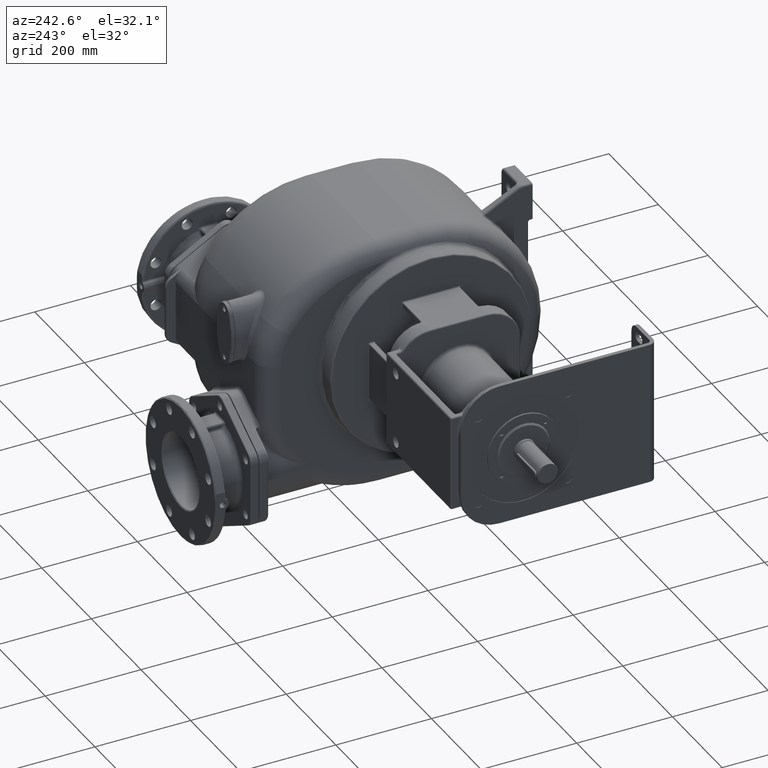
[diagram: clean part render]
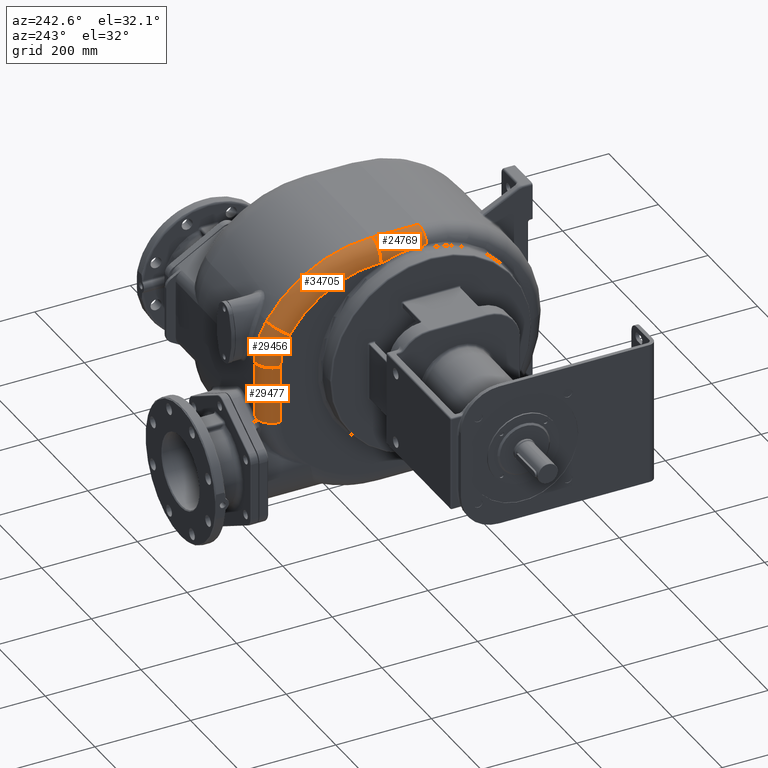
[diagram: same view with one multi-face feature highlighted, each face labeled with its STEP entity id]
A machine part, auxiliary view. The highlighted faces form ONE feature: a constant-radius fillet chain: 4 tangent blend faces with common blend radius 36 mm. The faces share edges in the B-rep.
Their STEP definitions:
[1] entity #29477 (Cylinder):
#4705=CARTESIAN_POINT('',(-1.075706895218E2,6.099080928169E2,
-8.122009189057E1));
#4706=CARTESIAN_POINT('',(-1.077603667420E2,6.098945152202E2,
-8.134785436569E1));
#4707=CARTESIAN_POINT('',(-1.081398862236E2,6.098643268937E2,
-8.160343563808E1));
#4708=CARTESIAN_POINT('',(-1.087074904091E2,6.098100874647E2,
-8.198578602877E1));
#4709=CARTESIAN_POINT('',(-1.090851972030E2,6.097679763710E2,
-8.224018206872E1));
#4710=CARTESIAN_POINT('',(-1.092738153531E2,6.097454256796E2,
-8.236722963494E1));
#4712=CARTESIAN_POINT('',(-1.049999999999E2,6.099999907785E2,
-7.948849427768E1));
#4713=CARTESIAN_POINT('',(-1.052860164744E2,6.099999883422E2,
-7.968114918334E1));
#4714=CARTESIAN_POINT('',(-1.058578897467E2,6.099931890198E2,
-8.006634656761E1));
#4715=CARTESIAN_POINT('',(-1.067151210626E2,6.099625297640E2,
-8.064374551038E1));
#4716=CARTESIAN_POINT('',(-1.072854916578E2,6.099285071755E2,
-8.102798783214E1));
#4717=CARTESIAN_POINT('',(-1.075706895218E2,6.099080928169E2,
-8.122009189057E1));
#4719=CARTESIAN_POINT('',(-1.05E2,5.74E2,3.462177826491E1));
#4720=DIRECTION('',(0.E0,0.E0,-1.E0));
#4721=DIRECTION('',(-1.E0,0.E0,0.E0));
#4722=AXIS2_PLACEMENT_3D('',#4719,#4720,#4721);
#4724=CARTESIAN_POINT('',(-1.092738153531E2,6.097454256796E2,
-8.236722963494E1));
#4725=CARTESIAN_POINT('',(-1.094393539522E2,6.097256333466E2,
-8.247873117782E1));
#4726=CARTESIAN_POINT('',(-1.097701149173E2,6.096837352484E2,
-8.270736717730E1));
#4727=CARTESIAN_POINT('',(-1.102652447588E2,6.096140488140E2,
-8.306797422289E1));
#4728=CARTESIAN_POINT('',(-1.107579209623E2,6.095377101992E2,
-8.344590411304E1));
#4729=CARTESIAN_POINT('',(-1.112472067541E2,6.094549563511E2,
-8.384106918896E1));
#4730=CARTESIAN_POINT('',(-1.117317046381E2,6.093661480554E2,
-8.425295132230E1));
#4731=CARTESIAN_POINT('',(-1.122120317317E2,6.092713239852E2,
-8.468247538176E1));
#4732=CARTESIAN_POINT('',(-1.126904212140E2,6.091701173450E2,
-8.513243471239E1));
#4733=CARTESIAN_POINT('',(-1.131676022982E2,6.090623736746E2,
-8.560448353585E1));
#4734=CARTESIAN_POINT('',(-1.136432816468E2,6.089481540279E2,
-8.609928334032E1));
#4735=CARTESIAN_POINT('',(-1.139594046990E2,6.088676879272E2,
-8.644496920859E1));
#4736=CARTESIAN_POINT('',(-1.141171283358E2,6.088263977907E2,
-8.662177826491E1));
#5208=CARTESIAN_POINT('',(-1.141171282930E2,6.088263976272E2,
-8.662177826491E1));
#5222=CARTESIAN_POINT('',(-1.05E2,5.74E2,-8.662177826491E1));
#5223=DIRECTION('',(0.E0,0.E0,-1.E0));
#5224=DIRECTION('',(-1.E0,0.E0,0.E0));
#5225=AXIS2_PLACEMENT_3D('',#5222,#5223,#5224);
#5280=DIRECTION('',(0.E0,0.E0,-1.E0));
#5281=VECTOR('',#5280,1.212435565298E2);
#5282=CARTESIAN_POINT('',(-1.41E2,5.74E2,3.462177826491E1));
#5283=LINE('',#5282,#5281);
#8761=DIRECTION('',(9.913078026477E-13,-8.081202777860E-8,-1.E0));
#8762=VECTOR('',#8761,1.141102725419E2);
#8763=CARTESIAN_POINT('',(-1.05E2,6.1E2,3.462177826418E1));
#8764=LINE('',#8763,#8762);
#22149=CARTESIAN_POINT('',(-1.41E2,5.74E2,3.462177826491E1));
#22150=CARTESIAN_POINT('',(-1.41E2,5.74E2,-8.662177826491E1));
#22151=VERTEX_POINT('',#22149);
#22152=VERTEX_POINT('',#22150);
#22169=CARTESIAN_POINT('',(-1.05E2,6.1E2,3.462177826491E1));
#22170=VERTEX_POINT('',#22169);
#22528=VERTEX_POINT('',#4705);
#22529=VERTEX_POINT('',#4710);
#22691=CARTESIAN_POINT('',(-1.049999999999E2,6.099999907785E2,
-7.948849427768E1));
#22693=VERTEX_POINT('',#22691);
#22729=VERTEX_POINT('',#5208);
#29457=CARTESIAN_POINT('',(-1.05E2,5.74E2,3.652125293659E1));
#29458=DIRECTION('',(0.E0,0.E0,-1.E0));
#29459=DIRECTION('',(-1.E0,0.E0,0.E0));
#29460=AXIS2_PLACEMENT_3D('',#29457,#29458,#29459);
#29461=CYLINDRICAL_SURFACE('',#29460,3.6E1);
#29463=ORIENTED_EDGE('',*,*,#29462,.F.);
#29465=ORIENTED_EDGE('',*,*,#29464,.F.);
#29467=ORIENTED_EDGE('',*,*,#29466,.F.);
#29468=ORIENTED_EDGE('',*,*,#29447,.F.);
#29470=ORIENTED_EDGE('',*,*,#29469,.T.);
#29472=ORIENTED_EDGE('',*,*,#29471,.T.);
#29474=ORIENTED_EDGE('',*,*,#29473,.F.);
#29475=EDGE_LOOP('',(#29463,#29465,#29467,#29468,#29470,#29472,#29474));
#29476=FACE_OUTER_BOUND('',#29475,.F.);
#29477=ADVANCED_FACE('',(#29476),#29461,.T.);
#4711=B_SPLINE_CURVE_WITH_KNOTS('',3,(#4705,#4706,#4707,#4708,#4709,#4710),
.UNSPECIFIED.,.F.,.F.,(4,1,1,4),(0.E0,3.333333333333E-1,6.666666666667E-1,1.E0),
.UNSPECIFIED.);
#4718=B_SPLINE_CURVE_WITH_KNOTS('',3,(#4712,#4713,#4714,#4715,#4716,#4717),
.UNSPECIFIED.,.F.,.F.,(4,1,1,4),(0.E0,3.333333333333E-1,6.666666666667E-1,1.E0),
.UNSPECIFIED.);
#4723=CIRCLE('',#4722,3.6E1);
#4737=B_SPLINE_CURVE_WITH_KNOTS('',3,(#4724,#4725,#4726,#4727,#4728,#4729,#4730,
#4731,#4732,#4733,#4734,#4735,#4736),.UNSPECIFIED.,.F.,.F.,(4,1,1,1,1,1,1,1,1,1,
4),(0.E0,1.E-1,2.E-1,3.E-1,4.E-1,5.E-1,6.E-1,7.E-1,8.E-1,9.E-1,1.E0),
.UNSPECIFIED.);
#5226=CIRCLE('',#5225,3.6E1);
#29447=EDGE_CURVE('',#22151,#22170,#4723,.T.);
#29462=EDGE_CURVE('',#22528,#22529,#4711,.T.);
#29464=EDGE_CURVE('',#22693,#22528,#4718,.T.);
#29466=EDGE_CURVE('',#22170,#22693,#8764,.T.);
#29469=EDGE_CURVE('',#22151,#22152,#5283,.T.);
#29471=EDGE_CURVE('',#22152,#22729,#5226,.T.);
#29473=EDGE_CURVE('',#22529,#22729,#4737,.T.);
[2] entity #29456 (Torus):
#4695=CARTESIAN_POINT('',(-1.05E2,4.570833333333E2,3.462177826491E1));
#4696=DIRECTION('',(-1.E0,0.E0,0.E0));
#4697=DIRECTION('',(0.E0,8.379594898725E-1,5.457324374936E-1));
#4698=AXIS2_PLACEMENT_3D('',#4695,#4696,#4697);
#4700=CARTESIAN_POINT('',(-1.05E2,5.550547636909E2,9.842699574853E1));
#4701=DIRECTION('',(0.E0,5.457324374936E-1,-8.379594898725E-1));
#4702=DIRECTION('',(-1.E0,0.E0,0.E0));
#4703=AXIS2_PLACEMENT_3D('',#4700,#4701,#4702);
#4719=CARTESIAN_POINT('',(-1.05E2,5.74E2,3.462177826491E1));
#4720=DIRECTION('',(0.E0,0.E0,-1.E0));
#4721=DIRECTION('',(-1.E0,0.E0,0.E0));
#4722=AXIS2_PLACEMENT_3D('',#4719,#4720,#4721);
#5284=CARTESIAN_POINT('',(-1.41E2,4.570833333333E2,3.462177826491E1));
#5285=DIRECTION('',(-1.E0,0.E0,0.E0));
#5286=DIRECTION('',(0.E0,8.379594898725E-1,5.457324374936E-1));
#5287=AXIS2_PLACEMENT_3D('',#5284,#5285,#5286);
#22149=CARTESIAN_POINT('',(-1.41E2,5.74E2,3.462177826491E1));
#22151=VERTEX_POINT('',#22149);
#22164=CARTESIAN_POINT('',(-1.41E2,5.550547636909E2,9.842699574853E1));
#22166=VERTEX_POINT('',#22164);
#22167=CARTESIAN_POINT('',(-1.05E2,5.852213053263E2,1.180733634983E2));
#22168=VERTEX_POINT('',#22167);
#22169=CARTESIAN_POINT('',(-1.05E2,6.1E2,3.462177826491E1));
#22170=VERTEX_POINT('',#22169);
#29442=CARTESIAN_POINT('',(-1.05E2,4.570833333333E2,3.462177826491E1));
#29443=DIRECTION('',(-1.E0,0.E0,0.E0));
#29444=DIRECTION('',(0.E0,8.331555177585E-1,5.530387719036E-1));
#29445=AXIS2_PLACEMENT_3D('',#29442,#29443,#29444);
#29446=TOROIDAL_SURFACE('',#29445,1.169166666667E2,3.6E1);
#29448=ORIENTED_EDGE('',*,*,#29447,.T.);
#29449=ORIENTED_EDGE('',*,*,#29435,.F.);
#29451=ORIENTED_EDGE('',*,*,#29450,.F.);
#29453=ORIENTED_EDGE('',*,*,#29452,.T.);
#29454=EDGE_LOOP('',(#29448,#29449,#29451,#29453));
#29455=FACE_OUTER_BOUND('',#29454,.F.);
#29456=ADVANCED_FACE('',(#29455),#29446,.T.);
#4699=CIRCLE('',#4698,1.529166666667E2);
#4704=CIRCLE('',#4703,3.6E1);
#4723=CIRCLE('',#4722,3.6E1);
#5288=CIRCLE('',#5287,1.169166666667E2);
#29435=EDGE_CURVE('',#22168,#22170,#4699,.T.);
#29447=EDGE_CURVE('',#22151,#22170,#4723,.T.);
#29450=EDGE_CURVE('',#22166,#22168,#4704,.T.);
#29452=EDGE_CURVE('',#22166,#22151,#5288,.T.);
[3] entity #34705 (Torus):
#4624=CARTESIAN_POINT('',(-1.05E2,3.64E2,-2.6E1));
#4625=DIRECTION('',(-1.E0,0.E0,0.E0));
#4626=DIRECTION('',(0.E0,0.E0,1.E0));
#4627=AXIS2_PLACEMENT_3D('',#4624,#4625,#4626);
#4700=CARTESIAN_POINT('',(-1.05E2,5.550547636909E2,9.842699574853E1));
#4701=DIRECTION('',(0.E0,5.457324374936E-1,-8.379594898725E-1));
#4702=DIRECTION('',(-1.E0,0.E0,0.E0));
#4703=AXIS2_PLACEMENT_3D('',#4700,#4701,#4702);
#5289=CARTESIAN_POINT('',(-1.41E2,3.64E2,-2.6E1));
#5290=DIRECTION('',(-1.E0,0.E0,0.E0));
#5291=DIRECTION('',(0.E0,0.E0,1.E0));
#5292=AXIS2_PLACEMENT_3D('',#5289,#5290,#5291);
#10417=CARTESIAN_POINT('',(-1.05E2,3.64E2,2.02E2));
#10418=DIRECTION('',(0.E0,1.E0,0.E0));
#10419=DIRECTION('',(-1.E0,0.E0,0.E0));
#10420=AXIS2_PLACEMENT_3D('',#10417,#10418,#10419);
#22075=CARTESIAN_POINT('',(-1.05E2,3.639999999998E2,2.38E2));
#22077=VERTEX_POINT('',#22075);
#22163=CARTESIAN_POINT('',(-1.41E2,3.64E2,2.02E2));
#22164=CARTESIAN_POINT('',(-1.41E2,5.550547636909E2,9.842699574853E1));
#22165=VERTEX_POINT('',#22163);
#22166=VERTEX_POINT('',#22164);
#22167=CARTESIAN_POINT('',(-1.05E2,5.852213053263E2,1.180733634983E2));
#22168=VERTEX_POINT('',#22167);
#34694=CARTESIAN_POINT('',(-1.05E2,3.64E2,-2.6E1));
#34695=DIRECTION('',(-1.E0,0.E0,0.E0));
#34696=DIRECTION('',(0.E0,-5.064883655729E-3,9.999871733945E-1));
#34697=AXIS2_PLACEMENT_3D('',#34694,#34695,#34696);
#34698=TOROIDAL_SURFACE('',#34697,2.28E2,3.6E1);
#34699=ORIENTED_EDGE('',*,*,#29907,.T.);
#34700=ORIENTED_EDGE('',*,*,#29450,.T.);
#34701=ORIENTED_EDGE('',*,*,#29219,.F.);
#34702=ORIENTED_EDGE('',*,*,#24761,.F.);
#34703=EDGE_LOOP('',(#34699,#34700,#34701,#34702));
#34704=FACE_OUTER_BOUND('',#34703,.F.);
#34705=ADVANCED_FACE('',(#34704),#34698,.T.);
#4628=CIRCLE('',#4627,2.64E2);
#4704=CIRCLE('',#4703,3.6E1);
#5293=CIRCLE('',#5292,2.28E2);
#10421=CIRCLE('',#10420,3.6E1);
#24761=EDGE_CURVE('',#22165,#22077,#10421,.T.);
#29219=EDGE_CURVE('',#22077,#22168,#4628,.T.);
#29450=EDGE_CURVE('',#22166,#22168,#4704,.T.);
#29907=EDGE_CURVE('',#22165,#22166,#5293,.T.);
[4] entity #24769 (Cylinder):
#501=CARTESIAN_POINT('',(-1.390579241155E2,2.67E2,2.136643779199E2));
#502=CARTESIAN_POINT('',(-1.390387017344E2,2.680860775303E2,2.137205070516E2));
#503=CARTESIAN_POINT('',(-1.390048071579E2,2.702569207822E2,2.138185817937E2));
#504=CARTESIAN_POINT('',(-1.389681524370E2,2.735094586627E2,2.139233915920E2));
#505=CARTESIAN_POINT('',(-1.389460349103E2,2.767576295499E2,2.139861069900E2));
#506=CARTESIAN_POINT('',(-1.389411398364E2,2.789197421109E2,2.140000041164E2));
#507=CARTESIAN_POINT('',(-1.389411385268E2,2.799999999991E2,2.140000046067E2));
#509=CARTESIAN_POINT('',(-1.389411385268E2,2.799999999991E2,2.140000046067E2));
#510=CARTESIAN_POINT('',(-1.389411618054E2,2.811706854225E2,2.139999957867E2));
#511=CARTESIAN_POINT('',(-1.389469132199E2,2.835164694439E2,2.139836029937E2));
#512=CARTESIAN_POINT('',(-1.389729955832E2,2.870485868077E2,2.139096335154E2));
#513=CARTESIAN_POINT('',(-1.390162934908E2,2.905935400679E2,2.137855789147E2));
#514=CARTESIAN_POINT('',(-1.390764802154E2,2.941508827725E2,2.136106983323E2));
#515=CARTESIAN_POINT('',(-1.391528739095E2,2.977201951152E2,2.133844015866E2));
#516=CARTESIAN_POINT('',(-1.392445374468E2,3.013011165308E2,2.131061090431E2));
#517=CARTESIAN_POINT('',(-1.393503024433E2,3.048931315542E2,2.127751288373E2));
#518=CARTESIAN_POINT('',(-1.394687828019E2,3.084961008596E2,2.123905931469E2));
#519=CARTESIAN_POINT('',(-1.395981621774E2,3.121066985644E2,2.119521462588E2));
#520=CARTESIAN_POINT('',(-1.397362897353E2,3.157207159379E2,2.114597367691E2));
#521=CARTESIAN_POINT('',(-1.398807717128E2,3.193343124610E2,2.109133820392E2));
#522=CARTESIAN_POINT('',(-1.400289469651E2,3.229429950211E2,2.103132979895E2));
#523=CARTESIAN_POINT('',(-1.401776210824E2,3.265356725193E2,2.096612674749E2));
#524=CARTESIAN_POINT('',(-1.403234449012E2,3.301018367115E2,2.089596274051E2));
#525=CARTESIAN_POINT('',(-1.404629912875E2,3.336308366668E2,2.082112945552E2));
#526=CARTESIAN_POINT('',(-1.405928781278E2,3.371128130556E2,2.074195888671E2));
#527=CARTESIAN_POINT('',(-1.407098415890E2,3.405387208321E2,2.065882278767E2));
#528=CARTESIAN_POINT('',(-1.408108002083E2,3.438995135251E2,2.057214589808E2));
#529=CARTESIAN_POINT('',(-1.408929460463E2,3.471864415159E2,2.048239459544E2));
#530=CARTESIAN_POINT('',(-1.409538407451E2,3.503905480631E2,2.039009133804E2));
#531=CARTESIAN_POINT('',(-1.409914222680E2,3.535039955617E2,2.029577384350E2));
#532=CARTESIAN_POINT('',(-1.410000451446E2,3.555110937732E2,2.023204661032E2));
#533=CARTESIAN_POINT('',(-1.410000289575E2,3.564983659964E2,2.019999999995E2));
#535=CARTESIAN_POINT('',(-1.05E2,2.67E2,2.02E2));
#536=DIRECTION('',(0.E0,1.E0,0.E0));
#537=DIRECTION('',(-9.460534814815E-1,0.E0,3.240105093616E-1));
#538=AXIS2_PLACEMENT_3D('',#535,#536,#537);
#614=CARTESIAN_POINT('',(-1.390579241155E2,2.67E2,2.136643779199E2));
#5294=DIRECTION('',(3.860160268277E-6,9.999999999925E-1,6.452217095163E-11));
#5295=VECTOR('',#5294,7.501634003645E0);
#5296=CARTESIAN_POINT('',(-1.410000289575E2,3.564983659964E2,2.019999999995E2));
#5297=LINE('',#5296,#5295);
#10417=CARTESIAN_POINT('',(-1.05E2,3.64E2,2.02E2));
#10418=DIRECTION('',(0.E0,1.E0,0.E0));
#10419=DIRECTION('',(-1.E0,0.E0,0.E0));
#10420=AXIS2_PLACEMENT_3D('',#10417,#10418,#10419);
#10435=DIRECTION('',(0.E0,1.E0,0.E0));
#10436=VECTOR('',#10435,9.699999999979E1);
#10437=CARTESIAN_POINT('',(-1.05E2,2.67E2,2.38E2));
#10438=LINE('',#10437,#10436);
#22075=CARTESIAN_POINT('',(-1.05E2,3.639999999998E2,2.38E2));
#22077=VERTEX_POINT('',#22075);
#22121=CARTESIAN_POINT('',(-1.05E2,2.67E2,2.38E2));
#22123=VERTEX_POINT('',#22121);
#22163=CARTESIAN_POINT('',(-1.41E2,3.64E2,2.02E2));
#22165=VERTEX_POINT('',#22163);
#22482=VERTEX_POINT('',#614);
#22484=VERTEX_POINT('',#507);
#22486=VERTEX_POINT('',#533);
#24751=CARTESIAN_POINT('',(-1.05E2,2.656628649979E2,2.02E2));
#24752=DIRECTION('',(0.E0,1.E0,0.E0));
#24753=DIRECTION('',(-1.E0,0.E0,0.E0));
#24754=AXIS2_PLACEMENT_3D('',#24751,#24752,#24753);
#24755=CYLINDRICAL_SURFACE('',#24754,3.6E1);
#24756=ORIENTED_EDGE('',*,*,#24741,.T.);
#24758=ORIENTED_EDGE('',*,*,#24757,.T.);
#24760=ORIENTED_EDGE('',*,*,#24759,.T.);
#24762=ORIENTED_EDGE('',*,*,#24761,.T.);
#24764=ORIENTED_EDGE('',*,*,#24763,.F.);
#24766=ORIENTED_EDGE('',*,*,#24765,.F.);
#24767=EDGE_LOOP('',(#24756,#24758,#24760,#24762,#24764,#24766));
#24768=FACE_OUTER_BOUND('',#24767,.F.);
#24769=ADVANCED_FACE('',(#24768),#24755,.T.);
#508=B_SPLINE_CURVE_WITH_KNOTS('',3,(#501,#502,#503,#504,#505,#506,#507),
.UNSPECIFIED.,.F.,.F.,(4,1,1,1,4),(0.E0,2.5E-1,5.E-1,7.5E-1,1.E0),
.UNSPECIFIED.);
#534=B_SPLINE_CURVE_WITH_KNOTS('',3,(#509,#510,#511,#512,#513,#514,#515,#516,
#517,#518,#519,#520,#521,#522,#523,#524,#525,#526,#527,#528,#529,#530,#531,#532,
#533),.UNSPECIFIED.,.F.,.F.,(4,1,1,1,1,1,1,1,1,1,1,1,1,1,1,1,1,1,1,1,1,1,4),(
0.E0,4.545454545455E-2,9.090909090909E-2,1.363636363636E-1,1.818181818182E-1,
2.272727272727E-1,2.727272727273E-1,3.181818181818E-1,3.636363636364E-1,
4.090909090909E-1,4.545454545455E-1,5.E-1,5.454545454545E-1,5.909090909091E-1,
6.363636363636E-1,6.818181818182E-1,7.272727272727E-1,7.727272727273E-1,
8.181818181818E-1,8.636363636364E-1,9.090909090909E-1,9.545454545455E-1,1.E0),
.UNSPECIFIED.);
#539=CIRCLE('',#538,3.6E1);
#10421=CIRCLE('',#10420,3.6E1);
#24741=EDGE_CURVE('',#22482,#22484,#508,.T.);
#24757=EDGE_CURVE('',#22484,#22486,#534,.T.);
#24759=EDGE_CURVE('',#22486,#22165,#5297,.T.);
#24761=EDGE_CURVE('',#22165,#22077,#10421,.T.);
#24763=EDGE_CURVE('',#22123,#22077,#10438,.T.);
#24765=EDGE_CURVE('',#22482,#22123,#539,.T.);